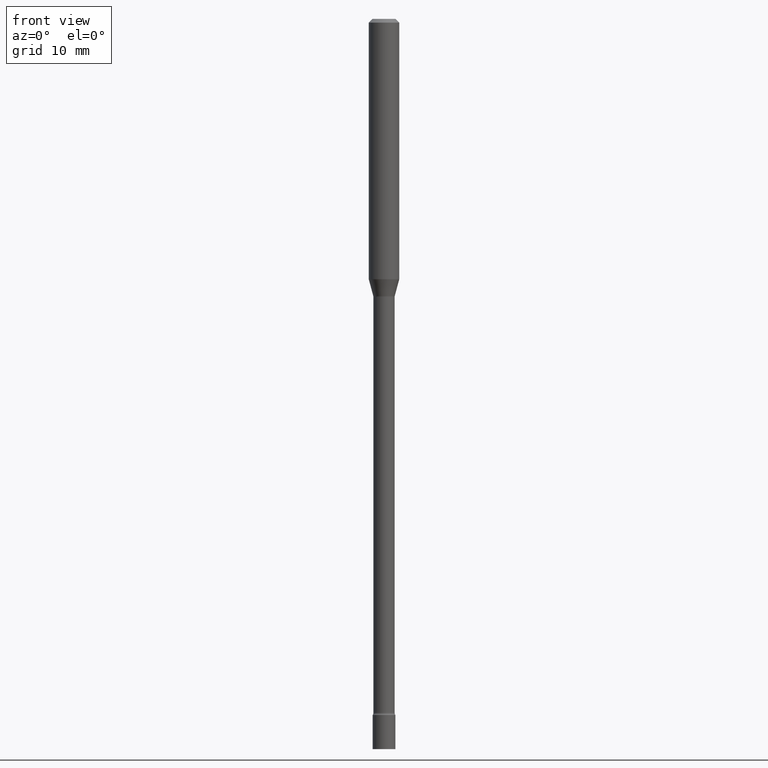
[diagram: clean part render]
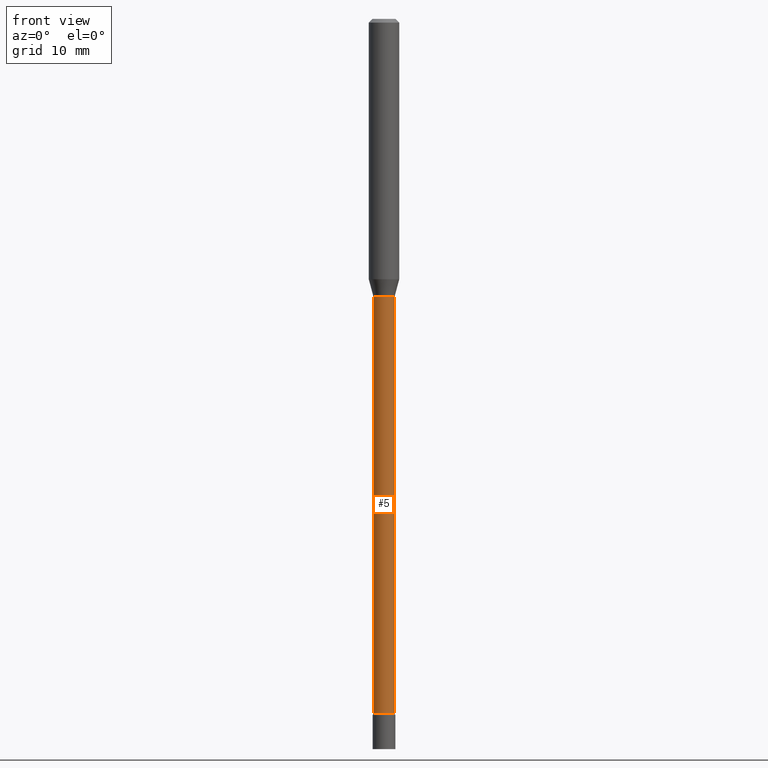
[diagram: same view with one face highlighted and labeled with its STEP entity id]
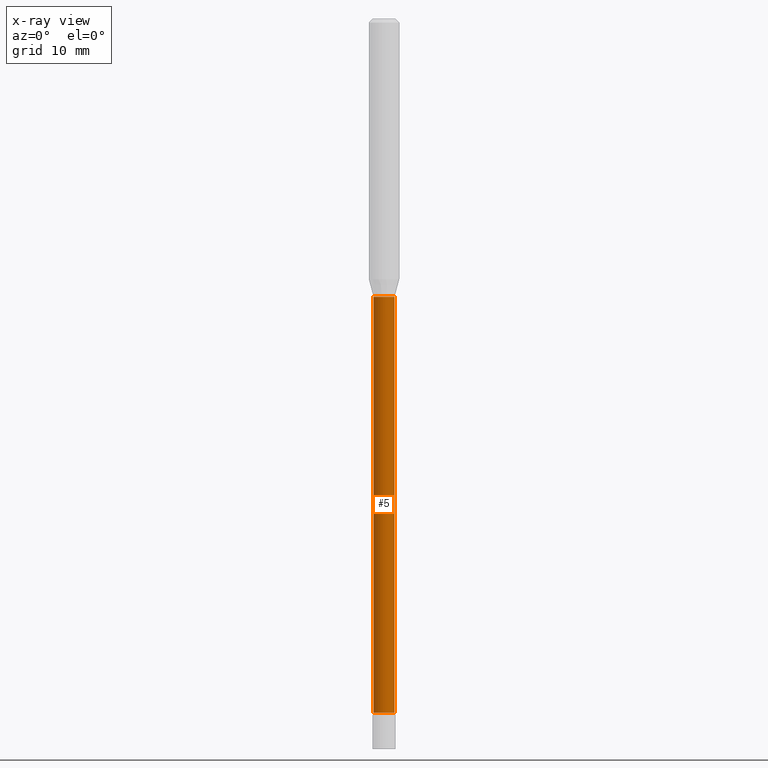
[diagram: x-ray of the same camera — body ghosted, the highlighted face saturated]
A machine part, front view. The second image highlights one B-rep face of the part: STEP entity #5.
The next image is the same camera in x-ray: the body ghosted, the highlighted face saturated — about 0% of this face is hidden behind the body in this view.
In plain terms, the highlighted cylindrical surface (edge-blend (fillet) strip) has radius 1.11 mm, axis along (-0, 0, 1).
Its self-contained STEP definition (entity closure, byte-faithful):
#5 = ADVANCED_FACE ( 'NONE', ( #418 ), #59, .T. ) ;
#48 = AXIS2_PLACEMENT_3D ( 'NONE', #257, #49, #505 ) ;
#49 = DIRECTION ( 'NONE',  ( -2.445468806185136597E-29, 3.491481338843145583E-15, 1.000000000000000000 ) ) ;
#50 = VERTEX_POINT ( 'NONE', #357 ) ;
#59 = CYLINDRICAL_SURFACE ( 'NONE', #319, 0.04370000000000008600 ) ;
#67 = LINE ( 'NONE', #348, #497 ) ;
#68 = DIRECTION ( 'NONE',  ( -2.445468806185136597E-29, 3.491481338843145583E-15, 1.000000000000000000 ) ) ;
#79 = DIRECTION ( 'NONE',  ( -2.445468806185136877E-29, 3.491481338843145188E-15, 1.000000000000000000 ) ) ;
#89 = LINE ( 'NONE', #448, #244 ) ;
#119 = CIRCLE ( 'NONE', #250, 0.04370000000000016926 ) ;
#139 = ORIENTED_EDGE ( 'NONE', *, *, #276, .T. ) ;
#141 = DIRECTION ( 'NONE',  ( 1.000000000000000000, -6.982962677686258822E-15, 0.000000000000000000 ) ) ;
#161 = ORIENTED_EDGE ( 'NONE', *, *, #420, .F. ) ;
#173 = CARTESIAN_POINT ( 'NONE',  ( 0.04370000000000000273, -4.292339128874152712E-15, -1.141974787463810870 ) ) ;
#178 = CARTESIAN_POINT ( 'NONE',  ( -0.04370000000000016926, -9.649946829351966867E-15, -2.851273030308291823 ) ) ;
#185 = EDGE_CURVE ( 'NONE', #376, #428, #461, .T. ) ;
#195 = DIRECTION ( 'NONE',  ( -2.445468806185136597E-29, 3.491481338843145583E-15, 1.000000000000000000 ) ) ;
#244 = VECTOR ( 'NONE', #79, 39.37007874015748143 ) ;
#250 = AXIS2_PLACEMENT_3D ( 'NONE', #433, #195, #141 ) ;
#257 = CARTESIAN_POINT ( 'NONE',  ( 2.792663720192650802E-29, -3.987183659859262844E-15, -1.141974787463810870 ) ) ;
#266 = VERTEX_POINT ( 'NONE', #178 ) ;
#269 = CARTESIAN_POINT ( 'NONE',  ( -0.04370000000000000273, -6.660667943036536836E-15, -1.141974787463810870 ) ) ;
#276 = EDGE_CURVE ( 'NONE', #50, #428, #67, .T. ) ;
#301 = CARTESIAN_POINT ( 'NONE',  ( 0.000000000000000000, 0.000000000000000000, 0.000000000000000000 ) ) ;
#319 = AXIS2_PLACEMENT_3D ( 'NONE', #301, #68, #346 ) ;
#321 = ORIENTED_EDGE ( 'NONE', *, *, #185, .F. ) ;
#322 = DIRECTION ( 'NONE',  ( -2.445468806185136877E-29, 3.491481338843145188E-15, 1.000000000000000000 ) ) ;
#346 = DIRECTION ( 'NONE',  ( 1.000000000000000000, -6.982962677686266711E-15, 4.876176775795935793E-29 ) ) ;
#348 = CARTESIAN_POINT ( 'NONE',  ( 0.04370000000000008600, -3.051554690148904595E-16, 2.130889251022828193E-30 ) ) ;
#357 = CARTESIAN_POINT ( 'NONE',  ( 0.04370000000000016926, -1.026032204628303796E-14, -2.851273030308291823 ) ) ;
#376 = VERTEX_POINT ( 'NONE', #269 ) ;
#380 = EDGE_CURVE ( 'NONE', #266, #50, #119, .T. ) ;
#406 = ORIENTED_EDGE ( 'NONE', *, *, #380, .T. ) ;
#418 = FACE_OUTER_BOUND ( 'NONE', #506, .T. ) ;
#420 = EDGE_CURVE ( 'NONE', #266, #376, #89, .T. ) ;
#428 = VERTEX_POINT ( 'NONE', #173 ) ;
#433 = CARTESIAN_POINT ( 'NONE',  ( 6.972699253535895201E-29, -9.955166577268146515E-15, -2.851273030308291823 ) ) ;
#448 = CARTESIAN_POINT ( 'NONE',  ( -0.04370000000000008600, 3.105071755271643923E-16, -2.149574634441398029E-30 ) ) ;
#461 = CIRCLE ( 'NONE', #48, 0.04370000000000000273 ) ;
#497 = VECTOR ( 'NONE', #322, 39.37007874015748143 ) ;
#505 = DIRECTION ( 'NONE',  ( 1.000000000000000000, -6.982962677686263555E-15, 0.000000000000000000 ) ) ;
#506 = EDGE_LOOP ( 'NONE', ( #161, #406, #139, #321 ) ) ;